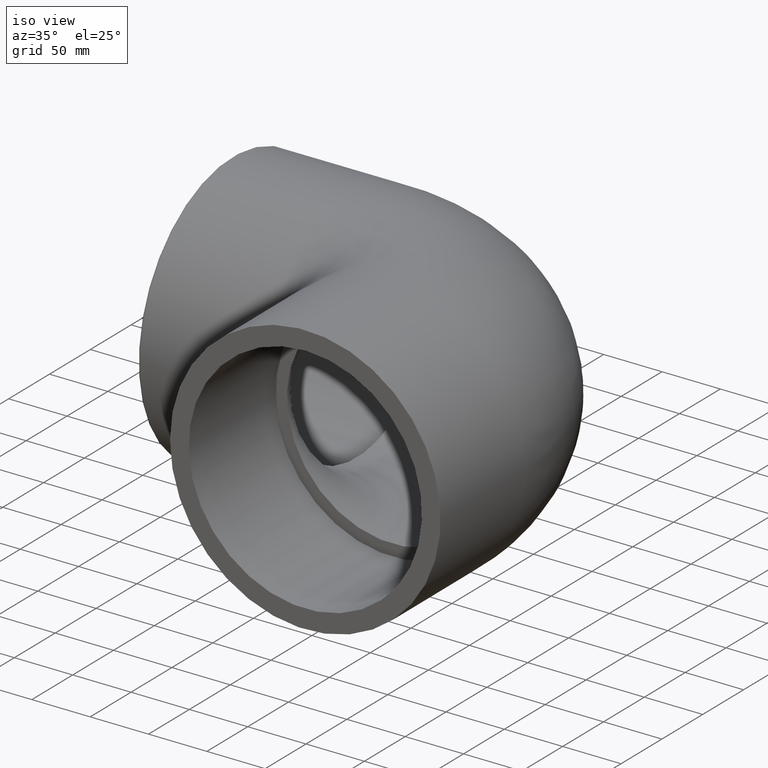
[diagram: clean part render]
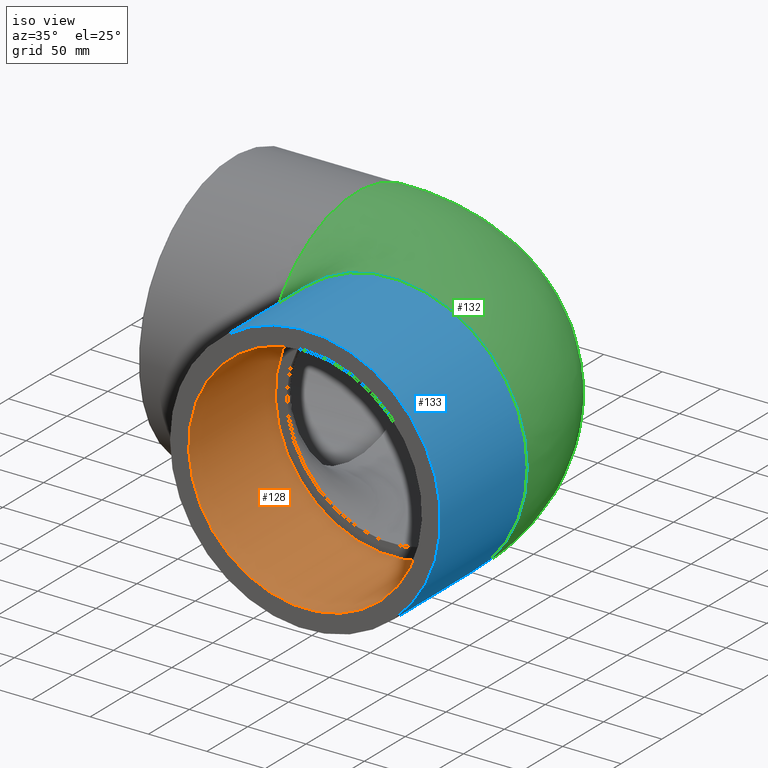
[diagram: same view with three faces highlighted in distinct colors, each labeled with its STEP entity id]
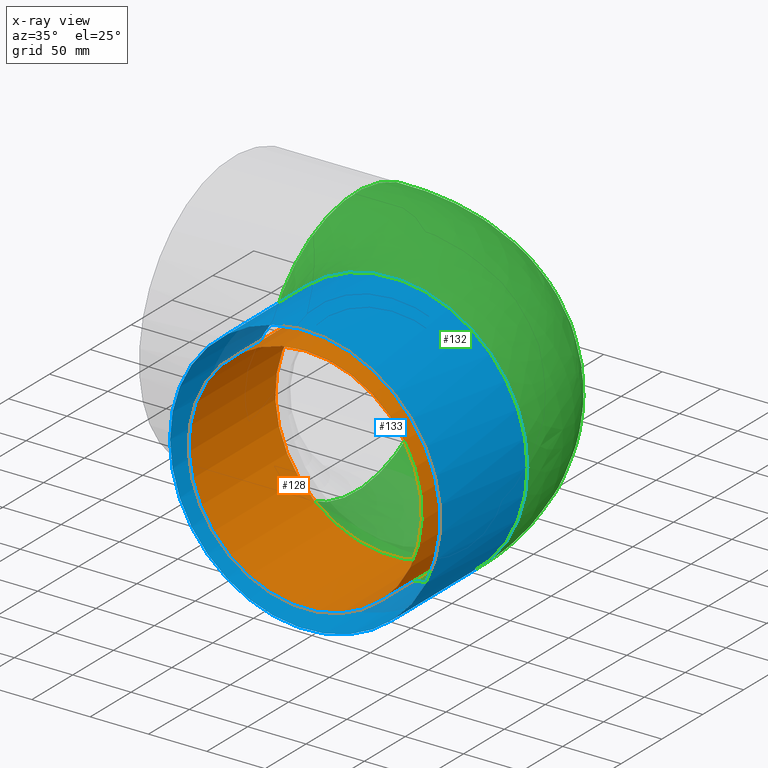
[diagram: x-ray of the same camera — body ghosted, the three highlighted faces saturated]
A machine part, iso view with three faces highlighted in distinct colors.
The next image is the same camera in x-ray (body ghosted, the three faces saturated) — at least one of them is partly hidden behind the body in this view.
Their STEP definitions:

[orange] entity #128 — the highlighted cylindrical surface (bore or boss wall) has radius 100 mm, axis along (0, 1, 0).
#21=CYLINDRICAL_SURFACE('',#143,100.);
#26=FACE_BOUND('',#49,.T.);
#36=FACE_OUTER_BOUND('',#48,.T.);
#48=EDGE_LOOP('',(#103));
#49=EDGE_LOOP('',(#104));
#69=CIRCLE('',#144,100.);
#70=CIRCLE('',#145,100.);
#80=VERTEX_POINT('',#215);
#81=VERTEX_POINT('',#217);
#91=EDGE_CURVE('',#80,#80,#69,.T.);
#92=EDGE_CURVE('',#81,#81,#70,.T.);
#103=ORIENTED_EDGE('',*,*,#91,.T.);
#104=ORIENTED_EDGE('',*,*,#92,.F.);
#128=ADVANCED_FACE('',(#36,#26),#21,.F.);
#143=AXIS2_PLACEMENT_3D('',#214,#170,#171);
#144=AXIS2_PLACEMENT_3D('',#216,#172,#173);
#145=AXIS2_PLACEMENT_3D('',#218,#174,#175);
#170=DIRECTION('center_axis',(6.12323399573677E-17,1.,0.));
#171=DIRECTION('ref_axis',(0.,0.,-1.));
#172=DIRECTION('center_axis',(6.12323399573677E-17,1.,0.));
#173=DIRECTION('ref_axis',(0.,0.,-1.));
#174=DIRECTION('center_axis',(6.12323399573677E-17,1.,0.));
#175=DIRECTION('ref_axis',(0.,0.,-1.));
#214=CARTESIAN_POINT('Origin',(-1.27363267111325E-14,-208.,0.));
#215=CARTESIAN_POINT('',(-1.8492166667125E-14,-102.,100.));
#216=CARTESIAN_POINT('Origin',(-6.2456986756515E-15,-102.,0.));
#217=CARTESIAN_POINT('',(-2.4982794702606E-14,-208.,100.));
#218=CARTESIAN_POINT('Origin',(-1.27363267111325E-14,-208.,0.));

[blue] entity #133 — the highlighted cylindrical surface (bore or boss wall) has radius 116 mm, axis along (0, 1, 0).
#15=ELLIPSE('',#154,164.048773235279,116.);
#23=CYLINDRICAL_SURFACE('',#153,116.);
#30=FACE_BOUND('',#58,.T.);
#41=FACE_OUTER_BOUND('',#57,.T.);
#57=EDGE_LOOP('',(#113,#114));
#58=EDGE_LOOP('',(#115));
#74=CIRCLE('',#152,116.);
#75=CIRCLE('',#155,116.);
#84=VERTEX_POINT('',#253);
#85=VERTEX_POINT('',#254);
#86=VERTEX_POINT('',#259);
#96=EDGE_CURVE('',#85,#84,#74,.T.);
#97=EDGE_CURVE('',#84,#85,#15,.T.);
#98=EDGE_CURVE('',#86,#86,#75,.T.);
#113=ORIENTED_EDGE('',*,*,#97,.F.);
#114=ORIENTED_EDGE('',*,*,#96,.F.);
#115=ORIENTED_EDGE('',*,*,#98,.T.);
#133=ADVANCED_FACE('',(#41,#30),#23,.T.);
#152=AXIS2_PLACEMENT_3D('',#256,#188,#189);
#153=AXIS2_PLACEMENT_3D('',#257,#190,#191);
#154=AXIS2_PLACEMENT_3D('',#258,#192,#193);
#155=AXIS2_PLACEMENT_3D('',#260,#194,#195);
#188=DIRECTION('center_axis',(6.12323399573677E-17,1.,0.));
#189=DIRECTION('ref_axis',(0.,0.,-1.));
#190=DIRECTION('center_axis',(6.12323399573677E-17,1.,0.));
#191=DIRECTION('ref_axis',(-1.,6.12323399573677E-17,0.));
#192=DIRECTION('center_axis',(-0.707106781186548,0.707106781186547,0.));
#193=DIRECTION('ref_axis',(-0.707106781186547,-0.707106781186547,0.));
#194=DIRECTION('center_axis',(6.12323399573677E-17,1.,0.));
#195=DIRECTION('ref_axis',(0.,0.,-1.));
#253=CARTESIAN_POINT('',(-102.,-102.,-55.2449092677325));
#254=CARTESIAN_POINT('',(-102.,-102.,55.2449092677325));
#256=CARTESIAN_POINT('Origin',(-6.2456986756515E-15,-102.,0.));
#257=CARTESIAN_POINT('Origin',(-9.49101269339199E-15,-155.,0.));
#258=CARTESIAN_POINT('Origin',(0.,1.77635683940025E-14,0.));
#259=CARTESIAN_POINT('',(-116.,-208.,0.));
#260=CARTESIAN_POINT('Origin',(-1.27363267111325E-14,-208.,0.));

[green] entity #132 — the highlighted face is a freeform B-spline surface patch.
#16=(
BOUNDED_SURFACE()
B_SPLINE_SURFACE(2,2,((#226,#227,#228),(#229,#230,#231),(#232,#233,#234),
(#235,#236,#237),(#238,#239,#240),(#241,#242,#243),(#244,#245,#246),(#247,
#248,#249),(#250,#251,#252)),.UNSPECIFIED.,.F.,.F.,.F.)
B_SPLINE_SURFACE_WITH_KNOTS((3,2,2,2,3),(3,3),(-2.64520848846067,-1.32260424423033,
0.,1.32260424423033,2.64520848846067),(1.5707963267949,3.14159265358979),
 .UNSPECIFIED.)
GEOMETRIC_REPRESENTATION_ITEM()
RATIONAL_B_SPLINE_SURFACE(((1.,0.707106781186548,1.),(0.789193208986323,
0.558043869740601,0.789193208986323),(1.,0.707106781186548,1.),(0.789193208986323,
0.558043869740601,0.789193208986323),(1.,0.707106781186548,1.),(0.789193208986323,
0.558043869740601,0.789193208986323),(1.,0.707106781186548,1.),(0.789193208986323,
0.558043869740601,0.789193208986323),(1.,0.707106781186548,1.)))
REPRESENTATION_ITEM('')
SURFACE()
);
#40=FACE_OUTER_BOUND('',#56,.T.);
#56=EDGE_LOOP('',(#111,#112));
#73=CIRCLE('',#151,116.);
#74=CIRCLE('',#152,116.);
#84=VERTEX_POINT('',#253);
#85=VERTEX_POINT('',#254);
#95=EDGE_CURVE('',#84,#85,#73,.T.);
#96=EDGE_CURVE('',#85,#84,#74,.T.);
#111=ORIENTED_EDGE('',*,*,#95,.T.);
#112=ORIENTED_EDGE('',*,*,#96,.T.);
#132=ADVANCED_FACE('',(#40),#16,.F.);
#151=AXIS2_PLACEMENT_3D('',#255,#186,#187);
#152=AXIS2_PLACEMENT_3D('',#256,#188,#189);
#186=DIRECTION('center_axis',(1.,0.,0.));
#187=DIRECTION('ref_axis',(0.,0.,-1.));
#188=DIRECTION('center_axis',(6.12323399573677E-17,1.,0.));
#189=DIRECTION('ref_axis',(0.,0.,-1.));
#226=CARTESIAN_POINT('Ctrl Pts',(-102.,-102.,55.2449092677325));
#227=CARTESIAN_POINT('Ctrl Pts',(-102.,-102.,55.2449092677325));
#228=CARTESIAN_POINT('Ctrl Pts',(-102.,-102.,55.2449092677325));
#229=CARTESIAN_POINT('Ctrl Pts',(-102.,-59.0087726049,134.620642750228));
#230=CARTESIAN_POINT('Ctrl Pts',(-59.0087726049,-59.0087726049,134.620642750228));
#231=CARTESIAN_POINT('Ctrl Pts',(-59.0087726049,-102.,134.620642750228));
#232=CARTESIAN_POINT('Ctrl Pts',(-102.,28.49561369755,112.445542374965));
#233=CARTESIAN_POINT('Ctrl Pts',(28.49561369755,28.49561369755,112.445542374965));
#234=CARTESIAN_POINT('Ctrl Pts',(28.49561369755,-102.,112.445542374965));
#235=CARTESIAN_POINT('Ctrl Pts',(-102.,116.,90.2704419997012));
#236=CARTESIAN_POINT('Ctrl Pts',(116.,116.,90.2704419997012));
#237=CARTESIAN_POINT('Ctrl Pts',(116.,-102.,90.2704419997012));
#238=CARTESIAN_POINT('Ctrl Pts',(-102.,116.,0.));
#239=CARTESIAN_POINT('Ctrl Pts',(116.,116.,0.));
#240=CARTESIAN_POINT('Ctrl Pts',(116.,-102.,0.));
#241=CARTESIAN_POINT('Ctrl Pts',(-102.,116.,-90.2704419997012));
#242=CARTESIAN_POINT('Ctrl Pts',(116.,116.,-90.2704419997012));
#243=CARTESIAN_POINT('Ctrl Pts',(116.,-102.,-90.2704419997012));
#244=CARTESIAN_POINT('Ctrl Pts',(-102.,28.49561369755,-112.445542374965));
#245=CARTESIAN_POINT('Ctrl Pts',(28.49561369755,28.49561369755,-112.445542374965));
#246=CARTESIAN_POINT('Ctrl Pts',(28.49561369755,-102.,-112.445542374965));
#247=CARTESIAN_POINT('Ctrl Pts',(-102.,-59.0087726049,-134.620642750228));
#248=CARTESIAN_POINT('Ctrl Pts',(-59.0087726049,-59.0087726049,-134.620642750228));
#249=CARTESIAN_POINT('Ctrl Pts',(-59.0087726049,-102.,-134.620642750228));
#250=CARTESIAN_POINT('Ctrl Pts',(-102.,-102.,-55.2449092677325));
#251=CARTESIAN_POINT('Ctrl Pts',(-102.,-102.,-55.2449092677325));
#252=CARTESIAN_POINT('Ctrl Pts',(-102.,-102.,-55.2449092677325));
#253=CARTESIAN_POINT('',(-102.,-102.,-55.2449092677325));
#254=CARTESIAN_POINT('',(-102.,-102.,55.2449092677325));
#255=CARTESIAN_POINT('Origin',(-102.,0.,0.));
#256=CARTESIAN_POINT('Origin',(-6.2456986756515E-15,-102.,0.));